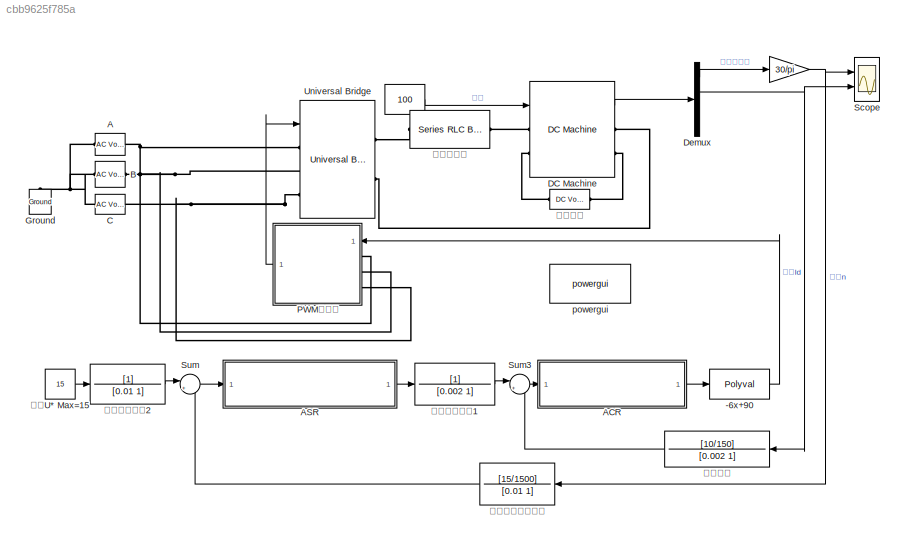
MODEL slx_cbb9625f785a
KIND model
CONFIG AbsTol = auto
CONFIG EnableMultiTasking = off
CONFIG FixedStep = auto
CONFIG MaxStep = 1e-4
CONFIG MinStep = auto
CONFIG RelTol = 1e-3
CONFIG SampleTimeConstraint = Unconstrained
CONFIG Solver = VariableStepAuto
CONFIG SolverName = VariableStepAuto
CONFIG StartTime = 0.0
CONFIG StopTime = 10.0
BLOCK [Constant]  
  Value = 100
BLOCK [Polyval] -6x+90
  Coefs = [-6 90]
BLOCK [Reference] A  REF=powerlib/Electrical
Sources/AC Voltage Source
  Ports = [0, 0, 0, 0, 0, 1, 1]
  SourceBlock = powerlib/Electrical\nSources/AC Voltage Source
  SourceProductBaseCode = PS
  SourceProductName = Simscape Power Systems
  SourceType = AC Voltage Source
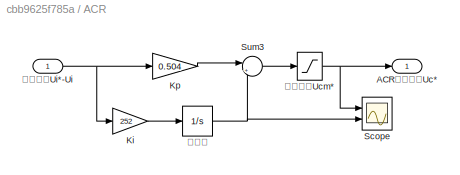
BLOCK [SubSystem] ACR
  Ports = [1, 1]
  RequestExecContextInheritance = off
  Variant = off
BLOCK [Outport] ACR/ACR输出电压Uc*
  IconDisplay = Port number
BLOCK [Gain] ACR/Ki
  Gain = 252
  OutDataTypeStr = Inherit: Inherit via internal rule
  ParamDataTypeStr = Inherit: Inherit via internal rule
  SaturateOnIntegerOverflow = off
BLOCK [Gain] ACR/Kp
  Gain = 0.504
  OutDataTypeStr = Inherit: Inherit via internal rule
  ParamDataTypeStr = Inherit: Inherit via internal rule
  SaturateOnIntegerOverflow = off
BLOCK [Scope] ACR/Scope
  NumInputPorts = 2
  Ports = [2]
  ScopeSpecificationString = Simulink.scopes.TimeScopeBlockCfg('CurrentConfiguration', extmgr.ConfigurationSet(extmgr.Configuration('Core','General UI',true),extmgr.Configuration('Core','Source UI',true),extmgr.Configuration('Sources','WiredSimulink',true,'DataLoggingVariableName','ScopeData2'),extmgr.Configuration('Visuals','Time Domain',true,'SerializedDisplays',{struct('MinYLimReal','-3.47954','MaxYLimReal','10.96576','YLa...<+1405ch>
BLOCK [Sum] ACR/Sum3
  IconShape = round
  InputSameDT = off
  Inputs = |++
  OutDataTypeStr = Inherit: Inherit via internal rule
  Ports = [2, 1]
  SaturateOnIntegerOverflow = off
BLOCK [Integrator] ACR/积分器
  LimitOutput = on
  LowerSaturationLimit = -12
  Ports = [1, 1]
  UpperSaturationLimit = 12
BLOCK [Inport] ACR/输入偏差Ui*-Ui
  IconDisplay = Port number
BLOCK [Saturate] ACR/输出限幅Ucm*
  InputPortMap = u0
  LowerLimit = -10
  Ports = [1, 1]
  UpperLimit = 10
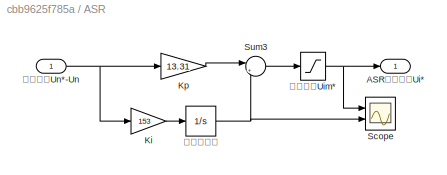
BLOCK [SubSystem] ASR
  Ports = [1, 1]
  RequestExecContextInheritance = off
  Variant = off
BLOCK [Outport] ASR/ASR输出电压Ui*
  IconDisplay = Port number
BLOCK [Gain] ASR/Ki
  Gain = 153
  OutDataTypeStr = Inherit: Inherit via internal rule
  ParamDataTypeStr = Inherit: Inherit via internal rule
  SaturateOnIntegerOverflow = off
BLOCK [Gain] ASR/Kp
  Gain = 13.31
  OutDataTypeStr = Inherit: Inherit via internal rule
  ParamDataTypeStr = Inherit: Inherit via internal rule
  SaturateOnIntegerOverflow = off
BLOCK [Scope] ASR/Scope
  NumInputPorts = 2
  Ports = [2]
  ScopeSpecificationString = Simulink.scopes.TimeScopeBlockCfg('CurrentConfiguration', extmgr.ConfigurationSet(extmgr.Configuration('Core','General UI',true),extmgr.Configuration('Core','Source UI',true),extmgr.Configuration('Sources','WiredSimulink',true,'DataLoggingVariableName','ScopeData1'),extmgr.Configuration('Visuals','Time Domain',true,'SerializedDisplays',{struct('MinYLimReal','-191.89186','MaxYLimReal','1663.73947',...<+1417ch>
BLOCK [Sum] ASR/Sum3
  IconShape = round
  InputSameDT = off
  Inputs = |++
  OutDataTypeStr = Inherit: Inherit via internal rule
  Ports = [2, 1]
  SaturateOnIntegerOverflow = off
BLOCK [Integrator] ASR/积分限幅器
  LimitOutput = on
  LowerSaturationLimit = -9
  Ports = [1, 1]
  UpperSaturationLimit = 9
BLOCK [Inport] ASR/输入偏差Un*-Un
  IconDisplay = Port number
BLOCK [Saturate] ASR/输出限幅Uim*
  InputPortMap = u0
  LowerLimit = -8
  Ports = [1, 1]
  UpperLimit = 8
BLOCK [Reference] B  REF=powerlib/Electrical
Sources/AC Voltage Source
  Ports = [0, 0, 0, 0, 0, 1, 1]
  SourceBlock = powerlib/Electrical\nSources/AC Voltage Source
  SourceProductBaseCode = PS
  SourceProductName = Simscape Power Systems
  SourceType = AC Voltage Source
BLOCK [Reference] C  REF=powerlib/Electrical
Sources/AC Voltage Source
  Ports = [0, 0, 0, 0, 0, 1, 1]
  SourceBlock = powerlib/Electrical\nSources/AC Voltage Source
  SourceProductBaseCode = PS
  SourceProductName = Simscape Power Systems
  SourceType = AC Voltage Source
BLOCK [Reference] DC Machine  REF=powerlib/Machines/DC Machine
  Ports = [1, 1, 0, 0, 0, 2, 2]
  SourceBlock = powerlib/Machines/DC Machine
  SourceProductBaseCode = PS
  SourceProductName = Simscape Power Systems
  SourceType = DC machine
BLOCK [Demux] Demux
  DisplayOption = bar
  Ports = [1, 4]
BLOCK [Reference] Ground  REF=powerlib/Elements/Ground
  Ports = [0, 0, 0, 0, 0, 1]
  SourceBlock = powerlib/Elements/Ground
  SourceProductBaseCode = PS
  SourceProductName = Simscape Power Systems
  SourceType = Ground
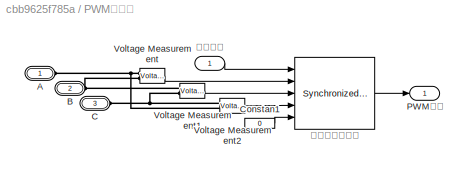
BLOCK [SubSystem] PWM发生器
  Ports = [1, 1, 0, 0, 0, 3]
  RequestExecContextInheritance = off
  Variant = off
BLOCK [PMIOPort] PWM发生器/A
  Port = 1
  Side = Left
BLOCK [PMIOPort] PWM发生器/B
  Port = 2
  Side = Left
BLOCK [PMIOPort] PWM发生器/C
  Port = 3
  Side = Left
BLOCK [Constant] PWM发生器/Constan1
  Value = 0
BLOCK [Outport] PWM发生器/PWM信号
  IconDisplay = Port number
BLOCK [Reference] PWM发生器/Voltage Measurement  REF=powerlib/Measurements/Voltage Measurement
  Ports = [0, 1, 0, 0, 0, 2]
  SourceBlock = powerlib/Measurements/Voltage Measurement
  SourceProductBaseCode = PS
  SourceProductName = Simscape Power Systems
  SourceType = Voltage Measurement
BLOCK [Reference] PWM发生器/Voltage Measurement1  REF=powerlib/Measurements/Voltage Measurement
  Ports = [0, 1, 0, 0, 0, 2]
  SourceBlock = powerlib/Measurements/Voltage Measurement
  SourceProductBaseCode = PS
  SourceProductName = Simscape Power Systems
  SourceType = Voltage Measurement
BLOCK [Reference] PWM发生器/Voltage Measurement2  REF=powerlib/Measurements/Voltage Measurement
  Ports = [0, 1, 0, 0, 0, 2]
  SourceBlock = powerlib/Measurements/Voltage Measurement
  SourceProductBaseCode = PS
  SourceProductName = Simscape Power Systems
  SourceType = Voltage Measurement
BLOCK [Reference] PWM发生器/同步六脉发生器  REF=powerlib_extras/Control 
Blocks/Synchronized
6-Pulse Generator
  Ports = [5, 1]
  SourceBlock = powerlib_extras/Control \nBlocks/Synchronized\n6-Pulse Generator
  SourceType = Synchronized 6-pulse generator
BLOCK [Inport] PWM发生器/触发角度
  IconDisplay = Port number
BLOCK [Scope] Scope
  NumInputPorts = 2
  Ports = [2]
  ScopeSpecificationString = Simulink.scopes.TimeScopeBlockCfg('CurrentConfiguration', extmgr.ConfigurationSet(extmgr.Configuration('Core','General UI',true,'FigureColor',[1 1 1]),extmgr.Configuration('Core','Source UI',true),extmgr.Configuration('Sources','WiredSimulink',true,'DataLoggingVariableName','ScopeData1'),extmgr.Configuration('Visuals','Time Domain',true,'SerializedDisplays',{struct('MinYLimReal','-197.75451','MaxY...<+1996ch>
BLOCK [Sum] Sum
  IconShape = round
  InputSameDT = off
  Inputs = |+-
  OutDataTypeStr = Inherit: Inherit via internal rule
  Ports = [2, 1]
  SaturateOnIntegerOverflow = off
BLOCK [Sum] Sum3
  IconShape = round
  InputSameDT = off
  Inputs = |+-
  OutDataTypeStr = Inherit: Inherit via internal rule
  Ports = [2, 1]
  SaturateOnIntegerOverflow = off
BLOCK [Reference] Universal Bridge  REF=powerlib/Power
Electronics/Universal Bridge
  Ports = [1, 0, 0, 0, 0, 3, 2]
  SourceBlock = powerlib/Power\nElectronics/Universal Bridge
  SourceProductBaseCode = PS
  SourceProductName = Simscape Power Systems
  SourceType = Universal Bridge
BLOCK [Reference] powergui  REF=powerlib/powergui
  Ports = []
  Priority = 1
  SourceBlock = powerlib/powergui
  SourceProductBaseCode = PS
  SourceProductName = Simscape Power Systems
  SourceType = PSB option menu block
BLOCK [Reference] 励磁电源  REF=powerlib/Electrical
Sources/DC Voltage Source
  Ports = [0, 0, 0, 0, 0, 1, 1]
  SourceBlock = powerlib/Electrical\nSources/DC Voltage Source
  SourceProductBaseCode = PS
  SourceProductName = Simscape Power Systems
  SourceType = DC Voltage Source
BLOCK [Reference] 平波电抗器  REF=powerlib/Elements/Series RLC Branch
  Ports = [0, 0, 0, 0, 0, 1, 1]
  SourceBlock = powerlib/Elements/Series RLC Branch
  SourceProductBaseCode = PS
  SourceProductName = Simscape Power Systems
  SourceType = Series RLC Branch
BLOCK [TransferFcn] 电压滤波环节2
  Denominator = [0.01 1]
BLOCK [TransferFcn] 电流反馈
  Denominator = [0.002 1]
  Numerator = [10/150]
BLOCK [TransferFcn] 电流滤波环节1
  Denominator = [0.002 1]
BLOCK [Constant] 给定U* Max=15
  Value = 15
BLOCK [TransferFcn] 转速（电压反馈）
  Denominator = [0.01 1]
  Numerator = [15/1500]
NET  :1 -> DC Machine:1, Scope:1, 转速（电压反馈）:1
LINE -6x+90:1 -> PWM发生器:1
LINE ACR/Ki:1 -> ACR/积分器:1
LINE ACR/Kp:1 -> ACR/Sum3:1
LINE ACR/Sum3:1 -> ACR/输出限幅Ucm*:1
NET ACR/积分器:1 -> ACR/Scope:2, ACR/Sum3:2
NET ACR/输入偏差Ui*-Ui:1 -> ACR/Ki:1, ACR/Kp:1
NET ACR/输出限幅Ucm*:1 -> ACR/ACR输出电压Uc*:1, ACR/Scope:1
LINE ACR:1 -> -6x+90:1
LINE ASR/Ki:1 -> ASR/积分限幅器:1
LINE ASR/Kp:1 -> ASR/Sum3:1
LINE ASR/Sum3:1 -> ASR/输出限幅Uim*:1
NET ASR/积分限幅器:1 -> ASR/Scope:2, ASR/Sum3:2
NET ASR/输入偏差Un*-Un:1 -> ASR/Ki:1, ASR/Kp:1
NET ASR/输出限幅Uim*:1 -> ASR/ASR输出电压Ui*:1, ASR/Scope:1
LINE ASR:1 -> 电流滤波环节1:1
LINE DC Machine:1 -> Demux:1
LINE Demux:1 ->  :1
NET Demux:2 -> Scope:2, 电流反馈:1
LINE PWM发生器/Constan1:1 -> PWM发生器/同步六脉发生器:5
LINE PWM发生器/Voltage Measurement1:1 -> PWM发生器/同步六脉发生器:3
LINE PWM发生器/Voltage Measurement2:1 -> PWM发生器/同步六脉发生器:4
LINE PWM发生器/Voltage Measurement:1 -> PWM发生器/同步六脉发生器:2
LINE PWM发生器/同步六脉发生器:1 -> PWM发生器/PWM信号:1
LINE PWM发生器/触发角度:1 -> PWM发生器/同步六脉发生器:1
LINE PWM发生器:1 -> Universal Bridge:1
LINE Sum3:1 -> ACR:1
LINE Sum:1 -> ASR:1
LINE 电压滤波环节2:1 -> Sum:1
LINE 电流反馈:1 -> Sum3:2
LINE 电流滤波环节1:1 -> Sum3:1
LINE 给定U* Max=15:1 -> 电压滤波环节2:1
LINE 转速（电压反馈）:1 -> Sum:2
PNET net1: A:LConn1 -- B:LConn1 -- C:LConn1 -- Ground:LConn1
PNET net2: A:RConn1 -- PWM发生器:LConn1 -- Universal Bridge:LConn1
PNET net3: B:RConn1 -- PWM发生器:LConn2 -- Universal Bridge:LConn2
PNET net4: C:RConn1 -- PWM发生器:LConn3 -- Universal Bridge:LConn3
PLINE DC Machine:LConn1 -- 平波电抗器:RConn1
PLINE DC Machine:LConn2 -- 励磁电源:RConn1
PLINE DC Machine:RConn1 -- Universal Bridge:RConn2
PLINE DC Machine:RConn2 -- 励磁电源:LConn1
PNET net5: PWM发生器/A:RConn1 -- PWM发生器/Voltage Measurement2:LConn2 -- PWM发生器/Voltage Measurement:LConn1
PNET net6: PWM发生器/B:RConn1 -- PWM发生器/Voltage Measurement1:LConn1 -- PWM发生器/Voltage Measurement:LConn2
PNET net7: PWM发生器/C:RConn1 -- PWM发生器/Voltage Measurement1:LConn2 -- PWM发生器/Voltage Measurement2:LConn1
PLINE Universal Bridge:RConn1 -- 平波电抗器:LConn1
note: NET lines group one-source signal fan-out (src -> all destinations, sorted); 1:1 wires keep LINE; PNET lines group multi-terminal physical nets as a canonical sorted terminal list (undirected conserving connections); 2-terminal nets keep the pairwise PLINE form
